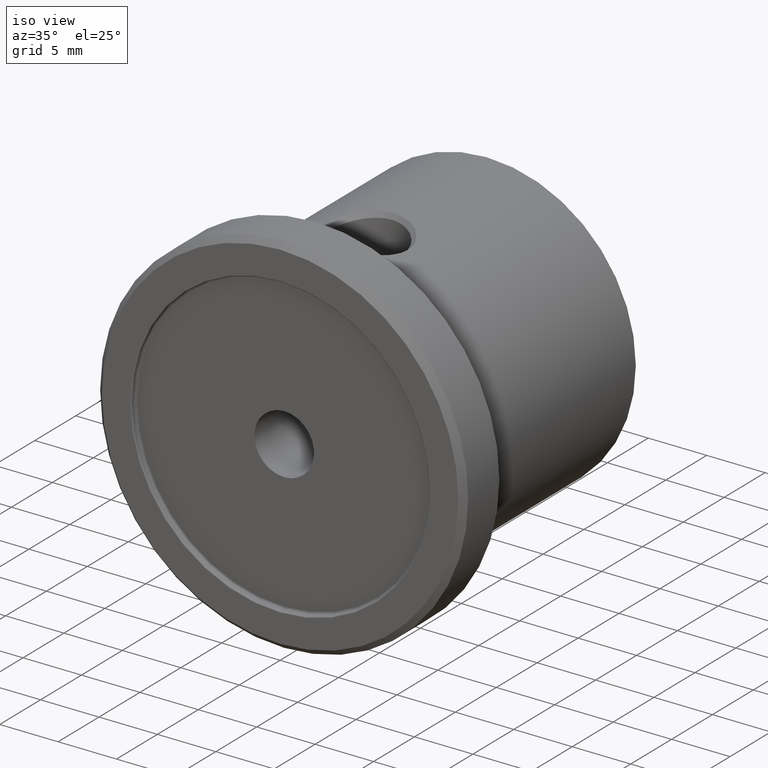
[diagram: clean part render]
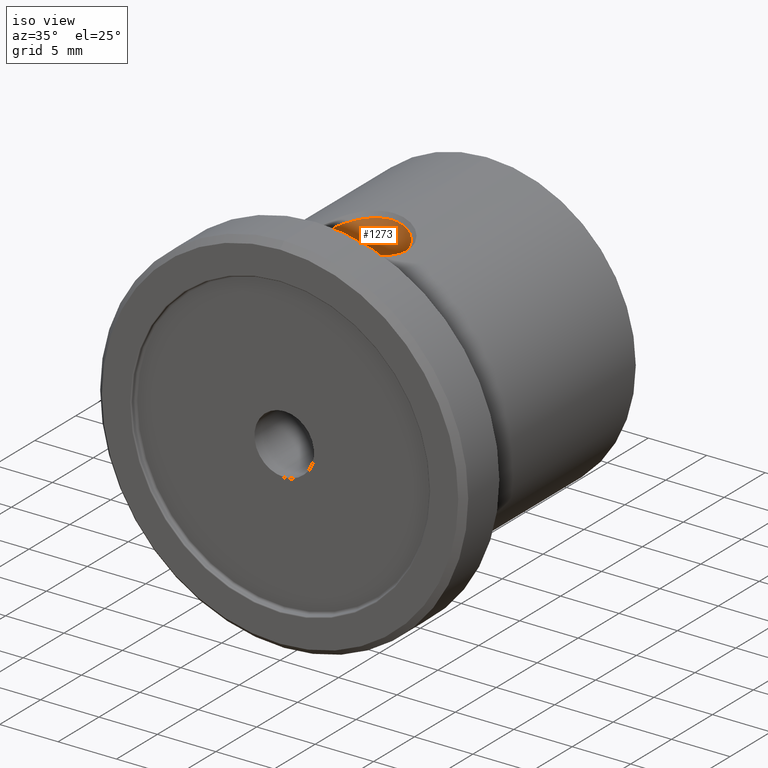
[diagram: same view with one face highlighted and labeled with its STEP entity id]
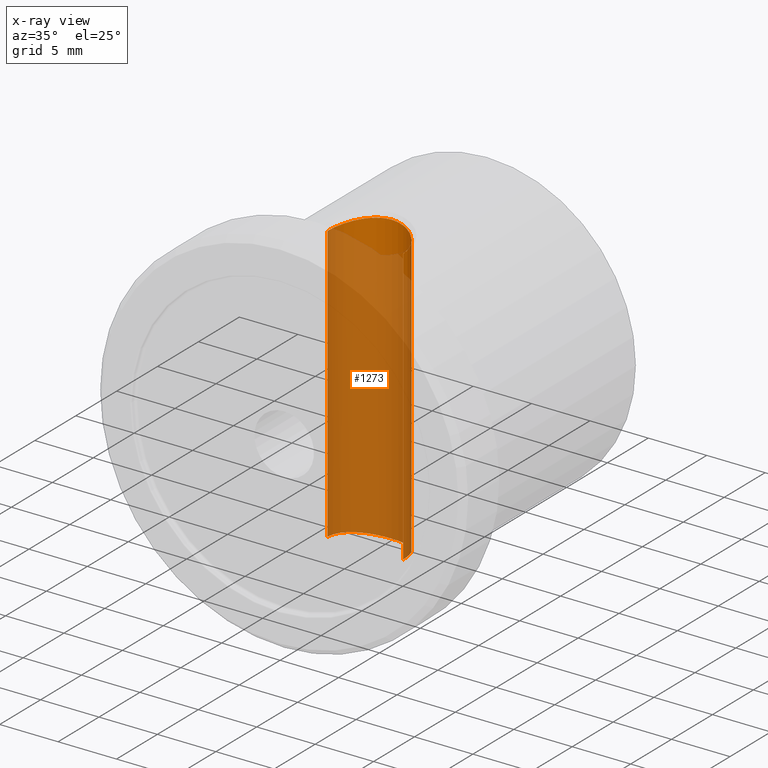
[diagram: x-ray of the same camera — body ghosted, the highlighted face saturated]
A machine part, iso view. The second image highlights one B-rep face of the part: STEP entity #1273.
The next image is the same camera in x-ray: the body ghosted, the highlighted face saturated — about 92% of this face is hidden behind the body in this view.
In plain terms, the highlighted cylindrical surface (partial cylindrical patch) has radius 3.25 mm, axis along (-0, -0, 1).
Its self-contained STEP definition (entity closure, byte-faithful):
#32 = EDGE_CURVE ( 'NONE', #1015, #716, #1393, .T. ) ;
#41 = CARTESIAN_POINT ( 'NONE',  ( 2.896381135049142000, 11.89377817000220000, 11.94229952955750000 ) ) ;
#48 = EDGE_CURVE ( 'NONE', #1015, #1309, #482, .T. ) ;
#58 = CARTESIAN_POINT ( 'NONE',  ( -2.897010718968802600, 11.89258406564459000, 11.94226605448908000 ) ) ;
#91 = CARTESIAN_POINT ( 'NONE',  ( -0.7024804313668678900, 13.60162285139577400, -12.32139342081120000 ) ) ;
#95 = CARTESIAN_POINT ( 'NONE',  ( -3.249999672965165200, 10.39999999455541500, 11.82882816804177900 ) ) ;
#122 = B_SPLINE_CURVE_WITH_KNOTS ( 'NONE', 3,
 ( #381, #372, #154, #914, #41, #469, #156, #370, #587, #1138, #1245, #916, #590, #1346, #264, #793, #1347, #1353, #1017, #690, #1135, #696, #483, #803, #920, #699, #266, #1021, #377, #58, #925, #269, #719, #613, #509, #928 ),
 .UNSPECIFIED., .F., .F.,
 ( 4, 2, 2, 2, 2, 2, 2, 2, 2, 2, 2, 2, 2, 2, 2, 2, 2, 4 ),
 ( 0.0000000000000000000, 0.06251714510626661700, 0.09377571765940005700, 0.1094050039359666800, 0.1172196470742499800, 0.1250342902125332600, 0.1875514353187990300, 0.2188100078719319400, 0.2500685804250648000, 0.3125857255313305700, 0.3438442980844634300, 0.3594735843610298300, 0.3672882274993130600, 0.3751028706375962300, 0.4063614431907290900, 0.4376200157438620000, 0.4688785882969948600, 0.5001371608501277200 ),
 .UNSPECIFIED. ) ;
#154 = CARTESIAN_POINT ( 'NONE',  ( 3.205174173665840300, 11.08571223612242600, 11.85039838176105300 ) ) ;
#156 = CARTESIAN_POINT ( 'NONE',  ( 2.637282244068056300, 12.30353598826461700, 12.00853782614034900 ) ) ;
#170 = FACE_OUTER_BOUND ( 'NONE', #706, .T. ) ;
#200 = CARTESIAN_POINT ( 'NONE',  ( -1.913171187956919800, 13.03021370668005800, -12.16625698994132800 ) ) ;
#203 = CARTESIAN_POINT ( 'NONE',  ( -2.992496527753270900, 11.68554090565614000, -11.91516147421109800 ) ) ;
#209 = CARTESIAN_POINT ( 'NONE',  ( 1.303012704654242800, 13.38494600828963000, -12.25792301059723900 ) ) ;
#230 = B_SPLINE_CURVE_WITH_KNOTS ( 'NONE', 3,
 ( #420, #639, #1181, #209, #1187, #324, #1074, #1200, #630, #1392, #734, #1410, #963, #1398, #752, #867, #643, #739 ),
 .UNSPECIFIED., .F., .F.,
 ( 4, 2, 2, 2, 2, 2, 2, 2, 4 ),
 ( 0.0000000000000000000, 0.06253051761565477100, 0.09379577642348210800, 0.1094284058273958000, 0.1172447205293526100, 0.1250610352313094300, 0.1563262940391365000, 0.1875915528469635800, 0.2501220704626174700 ),
 .UNSPECIFIED. ) ;
#256 = CARTESIAN_POINT ( 'NONE',  ( 3.249998995909303200, 10.39999999869046700, -11.82882855596582200 ) ) ;
#264 = CARTESIAN_POINT ( 'NONE',  ( 0.7078559687753874800, 13.57750525855413000, 12.31619233870197000 ) ) ;
#266 = CARTESIAN_POINT ( 'NONE',  ( -2.251542076052431200, 12.74469189239840900, 12.09904596172304600 ) ) ;
#269 = CARTESIAN_POINT ( 'NONE',  ( -3.134457631134477800, 11.28480092884443700, 11.87200595228426200 ) ) ;
#279 = CARTESIAN_POINT ( 'NONE',  ( -3.249999972598330200, 10.39999999999145400, -11.82882802260915000 ) ) ;
#324 = CARTESIAN_POINT ( 'NONE',  ( 1.811483803912536300, 13.10095760857372000, -12.18378499620871300 ) ) ;
#330 = CARTESIAN_POINT ( 'NONE',  ( 0.0000000000000000000, 10.40000000000000000, -15.75000000000000000 ) ) ;
#350 = ORIENTED_EDGE ( 'NONE', *, *, #48, .F. ) ;
#370 = CARTESIAN_POINT ( 'NONE',  ( 2.519547408935602000, 12.45388231831809600, 12.03692753882872800 ) ) ;
#372 = CARTESIAN_POINT ( 'NONE',  ( 3.249999999999999600, 10.71329732117901500, 11.82879307508436600 ) ) ;
#377 = CARTESIAN_POINT ( 'NONE',  ( -2.645422017877618000, 12.30321324243096400, 12.00713596906462400 ) ) ;
#381 = CARTESIAN_POINT ( 'NONE',  ( 3.250000000000000400, 10.40000000000000000, 11.82882800593794100 ) ) ;
#406 = CARTESIAN_POINT ( 'NONE',  ( -2.489792922824187300, 12.50608454335638500, -12.04480836203323200 ) ) ;
#411 = CARTESIAN_POINT ( 'NONE',  ( -2.061011959481164000, 12.91369583227260500, -12.13841393096851500 ) ) ;
#418 = CARTESIAN_POINT ( 'NONE',  ( -0.3244147533721241100, 13.65000000000000200, -12.34261566363076100 ) ) ;
#420 = CARTESIAN_POINT ( 'NONE',  ( 1.661404202113340200E-015, 13.65000000000000000, -12.34262754067380500 ) ) ;
#424 = DIRECTION ( 'NONE',  ( -0.0000000000000000000, -0.0000000000000000000, 1.000000000000000000 ) ) ;
#432 = VERTEX_POINT ( 'NONE', #256 ) ;
#469 = CARTESIAN_POINT ( 'NONE',  ( 2.707710574165985900, 12.20146542340135600, 11.99096386586040500 ) ) ;
#482 = LINE ( 'NONE', #848, #865 ) ;
#483 = CARTESIAN_POINT ( 'NONE',  ( -1.912602436233622200, 13.03062013087015300, 12.16637696933538700 ) ) ;
#489 = ORIENTED_EDGE ( 'NONE', *, *, #825, .T. ) ;
#501 = CARTESIAN_POINT ( 'NONE',  ( 3.250000000000000000, 10.40000000000000000, -15.75000000000000000 ) ) ;
#507 = EDGE_CURVE ( 'NONE', #1387, #1309, #122, .T. ) ;
#509 = CARTESIAN_POINT ( 'NONE',  ( -3.250000000268105100, 10.55688247101933000, 11.82880941130977300 ) ) ;
#512 = CARTESIAN_POINT ( 'NONE',  ( -2.897097624636562100, 11.89237840774631600, -11.94216748054927100 ) ) ;
#518 = CARTESIAN_POINT ( 'NONE',  ( -1.812616662736306100, 13.10020696703171900, -12.18349338139549700 ) ) ;
#526 = DIRECTION ( 'NONE',  ( 1.000000000000000000, 0.0000000000000000000, 0.0000000000000000000 ) ) ;
#587 = CARTESIAN_POINT ( 'NONE',  ( 2.478289734915422900, 12.50353452015115400, 12.04672890510292800 ) ) ;
#590 = CARTESIAN_POINT ( 'NONE',  ( 1.503098390066844400, 13.31275731930320400, 12.23671985319300000 ) ) ;
#608 = DIRECTION ( 'NONE',  ( -0.0000000000000000000, -0.0000000000000000000, 1.000000000000000000 ) ) ;
#613 = CARTESIAN_POINT ( 'NONE',  ( -3.238791200223607000, 10.72670673124701500, 11.83419957366963600 ) ) ;
#621 = CARTESIAN_POINT ( 'NONE',  ( -1.303369633553305400, 13.38480644399085900, -12.25774450791709700 ) ) ;
#630 = CARTESIAN_POINT ( 'NONE',  ( 2.108162465092295400, 12.87432229054883900, -12.12917237493425500 ) ) ;
#639 = CARTESIAN_POINT ( 'NONE',  ( 0.3247678595560607500, 13.65000000000000200, -12.34263943064430800 ) ) ;
#643 = CARTESIAN_POINT ( 'NONE',  ( 3.250000000218197900, 10.71378811639109900, -11.82874800932611100 ) ) ;
#689 = AXIS2_PLACEMENT_3D ( 'NONE', #330, #424, #526 ) ;
#690 = CARTESIAN_POINT ( 'NONE',  ( -1.303228585793807100, 13.38486701506197600, 12.25776928693067800 ) ) ;
#696 = CARTESIAN_POINT ( 'NONE',  ( -1.812139785670196000, 13.10052249412716700, 12.18359444692327300 ) ) ;
#699 = CARTESIAN_POINT ( 'NONE',  ( -2.205131231507449400, 12.78830976149568100, 12.10909916671491600 ) ) ;
#706 = EDGE_LOOP ( 'NONE', ( #350, #844, #1152, #489, #1008 ) ) ;
#716 = VERTEX_POINT ( 'NONE', #986 ) ;
#719 = CARTESIAN_POINT ( 'NONE',  ( -3.181047710961285400, 11.09097119149495100, 11.85579785679158200 ) ) ;
#729 = CARTESIAN_POINT ( 'NONE',  ( 1.661404202113340200E-015, 13.65000000000000000, -12.34262754067380500 ) ) ;
#734 = CARTESIAN_POINT ( 'NONE',  ( 2.250529477230212900, 12.74566430598921800, -12.09928222311734200 ) ) ;
#739 = CARTESIAN_POINT ( 'NONE',  ( 3.249998995909303200, 10.39999999869046700, -11.82882855596582200 ) ) ;
#752 = CARTESIAN_POINT ( 'NONE',  ( 2.992087270935500400, 11.68652606401690600, -11.91525470089487700 ) ) ;
#793 = CARTESIAN_POINT ( 'NONE',  ( 0.3380399586150988300, 13.63779689403915400, 12.33736542468322200 ) ) ;
#803 = CARTESIAN_POINT ( 'NONE',  ( -2.060296134109831800, 12.91428069788927500, 12.13856532829820600 ) ) ;
#825 = EDGE_CURVE ( 'NONE', #432, #1387, #1312, .T. ) ;
#828 = CARTESIAN_POINT ( 'NONE',  ( -3.250000000001779900, 10.71342982866334200, -11.82878279601109400 ) ) ;
#843 = CARTESIAN_POINT ( 'NONE',  ( -2.109790876133040600, 12.87293771574442000, -12.12880149934565400 ) ) ;
#844 = ORIENTED_EDGE ( 'NONE', *, *, #32, .T. ) ;
#848 = CARTESIAN_POINT ( 'NONE',  ( -3.250000000000000000, 10.40000000000000000, -15.75000000000000000 ) ) ;
#865 = VECTOR ( 'NONE', #1381, 1000.000000000000000 ) ;
#867 = CARTESIAN_POINT ( 'NONE',  ( 3.205310395797512900, 11.08514777073905900, -11.85034811008746100 ) ) ;
#914 = CARTESIAN_POINT ( 'NONE',  ( 2.991924443321515100, 11.68689502836512700, 11.91526669807147000 ) ) ;
#916 = CARTESIAN_POINT ( 'NONE',  ( 1.926445728947844000, 13.06998295634251900, 12.17311669458720800 ) ) ;
#920 = CARTESIAN_POINT ( 'NONE',  ( -2.109024516134421700, 12.87358906356110200, 12.12896387717659300 ) ) ;
#925 = CARTESIAN_POINT ( 'NONE',  ( -2.992482879278567200, 11.68559073669881500, 11.91524005113300600 ) ) ;
#928 = CARTESIAN_POINT ( 'NONE',  ( -3.249999672965165200, 10.39999999455541500, 11.82882816804177900 ) ) ;
#963 = CARTESIAN_POINT ( 'NONE',  ( 2.644693614179667300, 12.30423506950365100, -12.00725397951363500 ) ) ;
#966 = CARTESIAN_POINT ( 'NONE',  ( -2.645805245056965100, 12.30265145620823500, -12.00699092446033400 ) ) ;
#986 = CARTESIAN_POINT ( 'NONE',  ( 1.661404202113340200E-015, 13.65000000000000000, -12.34262754067380500 ) ) ;
#1008 = ORIENTED_EDGE ( 'NONE', *, *, #507, .T. ) ;
#1015 = VERTEX_POINT ( 'NONE', #1234 ) ;
#1017 = CARTESIAN_POINT ( 'NONE',  ( -0.7023703037276771700, 13.60164322406196600, 12.32136565935121200 ) ) ;
#1021 = CARTESIAN_POINT ( 'NONE',  ( -2.489185657399375400, 12.50684679348323800, 12.04497988028409100 ) ) ;
#1056 = CARTESIAN_POINT ( 'NONE',  ( -2.252554213091695800, 12.74371704211008800, -12.09883730352105300 ) ) ;
#1074 = CARTESIAN_POINT ( 'NONE',  ( 1.911870615633241000, 13.03114656122854100, -12.16657390800363300 ) ) ;
#1090 = CARTESIAN_POINT ( 'NONE',  ( 3.250000000000000400, 10.40000000000000000, 11.82882800593794100 ) ) ;
#1135 = CARTESIAN_POINT ( 'NONE',  ( -1.508492033473946200, 13.28853616237154300, 12.23127603037625900 ) ) ;
#1138 = CARTESIAN_POINT ( 'NONE',  ( 2.391655140471140600, 12.60153654902948400, 12.06700789507415500 ) ) ;
#1152 = ORIENTED_EDGE ( 'NONE', *, *, #1313, .T. ) ;
#1181 = CARTESIAN_POINT ( 'NONE',  ( 0.7027571196232502700, 13.60150145313056800, -12.32146478437147900 ) ) ;
#1187 = CARTESIAN_POINT ( 'NONE',  ( 1.508083989459796200, 13.28873068688201700, -12.23144578527832700 ) ) ;
#1200 = CARTESIAN_POINT ( 'NONE',  ( 2.059464850684252100, 12.91496021801394500, -12.13877103792320100 ) ) ;
#1207 = VECTOR ( 'NONE', #608, 1000.000000000000000 ) ;
#1234 = CARTESIAN_POINT ( 'NONE',  ( -3.249999972598330200, 10.39999999999145400, -11.82882802260915000 ) ) ;
#1245 = CARTESIAN_POINT ( 'NONE',  ( 2.345368285972238000, 12.65079620889927400, 12.07769622530439000 ) ) ;
#1273 = ADVANCED_FACE ( 'NONE', ( #170 ), #1325, .F. ) ;
#1283 = CARTESIAN_POINT ( 'NONE',  ( -1.508733849155325900, 13.28842682021835700, -12.23122561217493500 ) ) ;
#1288 = CARTESIAN_POINT ( 'NONE',  ( -3.205359897414252800, 11.08466888564534100, -11.85036060204868000 ) ) ;
#1309 = VERTEX_POINT ( 'NONE', #95 ) ;
#1312 = LINE ( 'NONE', #501, #1207 ) ;
#1313 = EDGE_CURVE ( 'NONE', #716, #432, #230, .T. ) ;
#1325 = CYLINDRICAL_SURFACE ( 'NONE', #689, 3.250000000000000000 ) ;
#1346 = CARTESIAN_POINT ( 'NONE',  ( 0.9028761777100357000, 13.52930576974634000, 12.30030203663328500 ) ) ;
#1347 = CARTESIAN_POINT ( 'NONE',  ( 0.1637775157796951800, 13.64993966587850900, 12.34264816142427200 ) ) ;
#1353 = CARTESIAN_POINT ( 'NONE',  ( -0.3239499964730088200, 13.65012000176717100, 12.34258537797461300 ) ) ;
#1371 = CARTESIAN_POINT ( 'NONE',  ( -2.205999439276265000, 12.78751020120925700, -12.10891381216941000 ) ) ;
#1381 = DIRECTION ( 'NONE',  ( -0.0000000000000000000, -0.0000000000000000000, 1.000000000000000000 ) ) ;
#1387 = VERTEX_POINT ( 'NONE', #1090 ) ;
#1392 = CARTESIAN_POINT ( 'NONE',  ( 2.204213139828100000, 12.78915554347974700, -12.10931296969875600 ) ) ;
#1393 = B_SPLINE_CURVE_WITH_KNOTS ( 'NONE', 3,
 ( #279, #828, #1288, #203, #512, #966, #406, #1056, #1371, #843, #411, #200, #518, #1283, #621, #91, #418, #729 ),
 .UNSPECIFIED., .F., .F.,
 ( 4, 2, 2, 2, 2, 2, 2, 2, 4 ),
 ( 0.7499902408146000800, 0.8124926806109502600, 0.8437439005091251800, 0.8749951204073001000, 0.8828079253818439400, 0.8906207303563875600, 0.9062463403054750200, 0.9374975602036499400, 1.000000000000000000 ),
 .UNSPECIFIED. ) ;
#1398 = CARTESIAN_POINT ( 'NONE',  ( 2.896511481857041200, 11.89356511350547100, -11.94230876872628300 ) ) ;
#1410 = CARTESIAN_POINT ( 'NONE',  ( 2.488331713453769000, 12.50786354212119300, -12.04514512246957600 ) ) ;